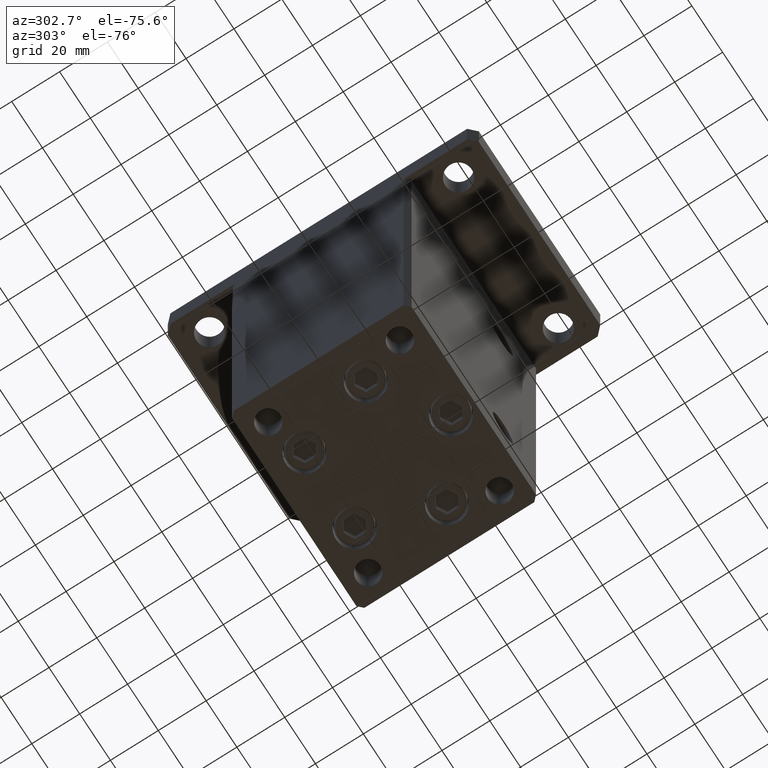
[diagram: clean part render]
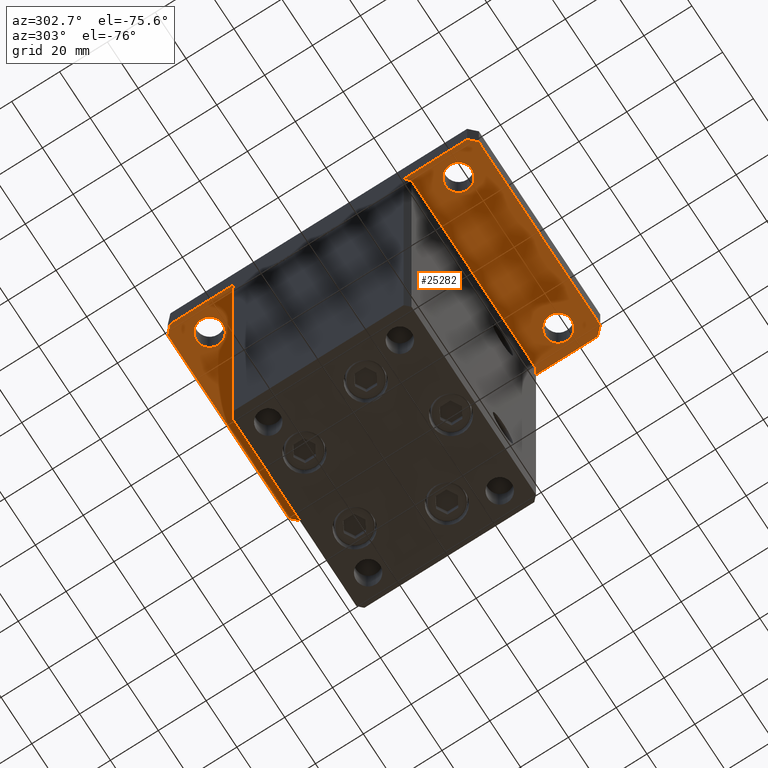
[diagram: same view with one face highlighted and labeled with its STEP entity id]
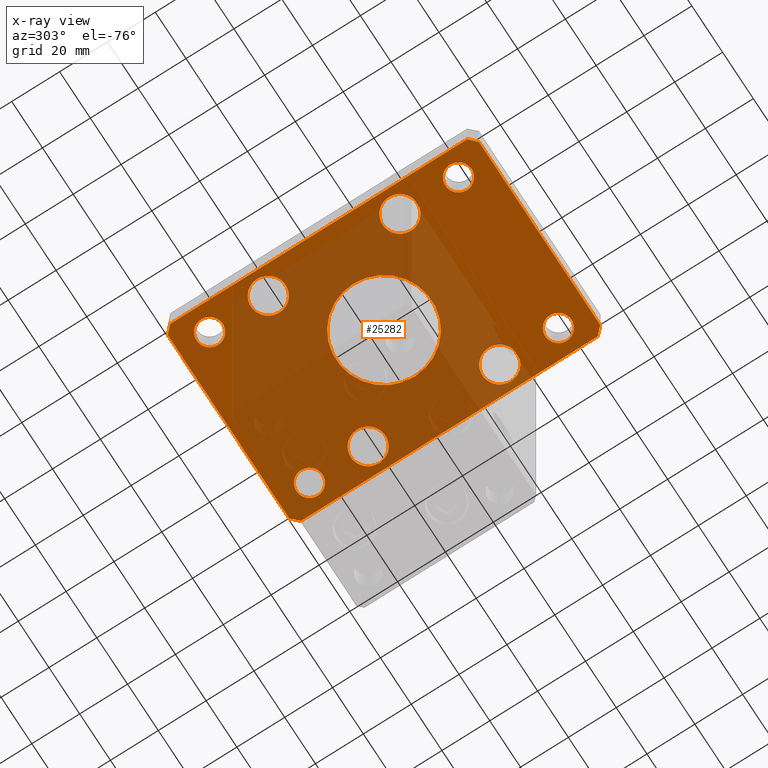
[diagram: x-ray of the same camera — body ghosted, the highlighted face saturated]
A machine part, auxiliary view. The second image highlights one B-rep face of the part: STEP entity #25282.
The next image is the same camera in x-ray: the body ghosted, the highlighted face saturated — about 61% of this face is hidden behind the body in this view.
In plain terms, the highlighted planar face has unit normal (0, 0, 1).
Its self-contained STEP definition (entity closure, byte-faithful):
#389 = VERTEX_POINT ( 'NONE', #41103 ) ;
#785 = CARTESIAN_POINT ( 'NONE',  ( -38.00000000000000000, 52.00000000000000000, 0.000000000000000000 ) ) ;
#1328 = EDGE_CURVE ( 'NONE', #42483, #43522, #40768, .T. ) ;
#2064 = ORIENTED_EDGE ( 'NONE', *, *, #34419, .T. ) ;
#2121 = AXIS2_PLACEMENT_3D ( 'NONE', #2670, #26832, #48259 ) ;
#2592 = AXIS2_PLACEMENT_3D ( 'NONE', #6078, #52208, #39225 ) ;
#2626 = ORIENTED_EDGE ( 'NONE', *, *, #34859, .F. ) ;
#2670 = CARTESIAN_POINT ( 'NONE',  ( 32.50000000000000000, -27.50000000000000000, 0.000000000000000000 ) ) ;
#2945 = DIRECTION ( 'NONE',  ( 0.000000000000000000, 0.000000000000000000, 1.000000000000000000 ) ) ;
#2987 = CIRCLE ( 'NONE', #2121, 7.249999999999999112 ) ;
#3238 = LINE ( 'NONE', #7842, #10444 ) ;
#3539 = VECTOR ( 'NONE', #13712, 1000.000000000000000 ) ;
#3625 = DIRECTION ( 'NONE',  ( -0.7071067811865417996, 0.7071067811865532349, 0.000000000000000000 ) ) ;
#3637 = DIRECTION ( 'NONE',  ( 1.000000000000000000, 0.000000000000000000, -0.000000000000000000 ) ) ;
#3768 = AXIS2_PLACEMENT_3D ( 'NONE', #28439, #32513, #49590 ) ;
#3892 = CARTESIAN_POINT ( 'NONE',  ( 42.50000000000000000, 62.00000000000000711, 0.000000000000000000 ) ) ;
#3900 = CARTESIAN_POINT ( 'NONE',  ( 42.50000000000000000, -61.99999999999988631, 0.000000000000000000 ) ) ;
#3908 = FACE_BOUND ( 'NONE', #28735, .T. ) ;
#4336 = CIRCLE ( 'NONE', #26867, 7.249999999999999112 ) ;
#4415 = VECTOR ( 'NONE', #27086, 1000.000000000000000 ) ;
#4878 = VERTEX_POINT ( 'NONE', #35519 ) ;
#5719 = DIRECTION ( 'NONE',  ( 1.000000000000000000, 0.000000000000000000, 0.000000000000000000 ) ) ;
#5837 = DIRECTION ( 'NONE',  ( 1.000000000000000000, 0.000000000000000000, 0.000000000000000000 ) ) ;
#6078 = CARTESIAN_POINT ( 'NONE',  ( -32.49999999999997868, -52.00000000000000711, 0.000000000000000000 ) ) ;
#6565 = VECTOR ( 'NONE', #3625, 1000.000000000000000 ) ;
#6569 = CARTESIAN_POINT ( 'NONE',  ( 32.49999999999997868, -52.00000000000000711, 0.000000000000000000 ) ) ;
#7260 = ORIENTED_EDGE ( 'NONE', *, *, #40517, .F. ) ;
#7829 = EDGE_CURVE ( 'NONE', #20402, #46473, #45767, .T. ) ;
#7842 = CARTESIAN_POINT ( 'NONE',  ( 39.50000000000002842, 65.00000000000002842, 0.000000000000000000 ) ) ;
#8246 = PLANE ( 'NONE',  #39061 ) ;
#8498 = EDGE_CURVE ( 'NONE', #28743, #28256, #42238, .T. ) ;
#8823 = ORIENTED_EDGE ( 'NONE', *, *, #43229, .T. ) ;
#8977 = DIRECTION ( 'NONE',  ( 0.000000000000000000, 0.000000000000000000, -1.000000000000000000 ) ) ;
#9223 = LINE ( 'NONE', #3892, #6565 ) ;
#9480 = CARTESIAN_POINT ( 'NONE',  ( 39.50000000000001421, -64.99999999999988631, 0.000000000000000000 ) ) ;
#9531 = DIRECTION ( 'NONE',  ( 0.000000000000000000, 0.000000000000000000, 1.000000000000000000 ) ) ;
#9793 = DIRECTION ( 'NONE',  ( 0.000000000000000000, 0.000000000000000000, 1.000000000000000000 ) ) ;
#9914 = ORIENTED_EDGE ( 'NONE', *, *, #51365, .T. ) ;
#10130 = DIRECTION ( 'NONE',  ( 0.000000000000000000, 0.000000000000000000, 1.000000000000000000 ) ) ;
#10444 = VECTOR ( 'NONE', #40454, 1000.000000000000000 ) ;
#10535 = CARTESIAN_POINT ( 'NONE',  ( 37.99999999999997868, -52.00000000000000711, 0.000000000000000000 ) ) ;
#10594 = DIRECTION ( 'NONE',  ( 1.000000000000000000, 0.000000000000000000, 0.000000000000000000 ) ) ;
#10705 = CIRCLE ( 'NONE', #30633, 7.249999999999999112 ) ;
#10722 = CARTESIAN_POINT ( 'NONE',  ( 20.00000000000000000, 2.449293598294706513E-15, 0.000000000000000000 ) ) ;
#10997 = ORIENTED_EDGE ( 'NONE', *, *, #30968, .F. ) ;
#11036 = CARTESIAN_POINT ( 'NONE',  ( -32.50000000000000000, 52.00000000000000000, 0.000000000000000000 ) ) ;
#11590 = VERTEX_POINT ( 'NONE', #50466 ) ;
#11612 = CIRCLE ( 'NONE', #18551, 7.249999999999999112 ) ;
#11655 = VECTOR ( 'NONE', #42162, 1000.000000000000000 ) ;
#11708 = VERTEX_POINT ( 'NONE', #10535 ) ;
#11879 = AXIS2_PLACEMENT_3D ( 'NONE', #51635, #10130, #31028 ) ;
#12356 = CARTESIAN_POINT ( 'NONE',  ( 32.50000000000000000, 27.50000000000000000, 0.000000000000000000 ) ) ;
#12527 = VECTOR ( 'NONE', #26576, 1000.000000000000114 ) ;
#13050 = AXIS2_PLACEMENT_3D ( 'NONE', #30079, #42302, #46619 ) ;
#13712 = DIRECTION ( 'NONE',  ( -0.7071067811865466846, -0.7071067811865483499, 0.000000000000000000 ) ) ;
#13848 = VERTEX_POINT ( 'NONE', #27666 ) ;
#13897 = CIRCLE ( 'NONE', #52899, 5.499999999999998224 ) ;
#14421 = AXIS2_PLACEMENT_3D ( 'NONE', #28221, #24158, #40723 ) ;
#15231 = CARTESIAN_POINT ( 'NONE',  ( 25.25000000000000000, -27.50000000000000000, 0.000000000000000000 ) ) ;
#15506 = VERTEX_POINT ( 'NONE', #785 ) ;
#15572 = VERTEX_POINT ( 'NONE', #51230 ) ;
#15705 = VERTEX_POINT ( 'NONE', #31967 ) ;
#15785 = EDGE_CURVE ( 'NONE', #41076, #4878, #32416, .T. ) ;
#15896 = CARTESIAN_POINT ( 'NONE',  ( -26.99999999999998579, -52.00000000000000711, 0.000000000000000000 ) ) ;
#16133 = FACE_BOUND ( 'NONE', #33907, .T. ) ;
#16190 = AXIS2_PLACEMENT_3D ( 'NONE', #27807, #39502, #28086 ) ;
#16672 = DIRECTION ( 'NONE',  ( 0.000000000000000000, 0.000000000000000000, 1.000000000000000000 ) ) ;
#17164 = LINE ( 'NONE', #25834, #22315 ) ;
#17407 = CIRCLE ( 'NONE', #13050, 20.00000000000000000 ) ;
#17693 = CARTESIAN_POINT ( 'NONE',  ( -39.50000000000003553, 65.00000000000000000, 0.000000000000000000 ) ) ;
#18281 = DIRECTION ( 'NONE',  ( 0.000000000000000000, 0.000000000000000000, 1.000000000000000000 ) ) ;
#18500 = EDGE_CURVE ( 'NONE', #46473, #40501, #25790, .T. ) ;
#18551 = AXIS2_PLACEMENT_3D ( 'NONE', #44462, #2945, #19512 ) ;
#18629 = EDGE_CURVE ( 'NONE', #39249, #15705, #2987, .T. ) ;
#18737 = DIRECTION ( 'NONE',  ( 0.000000000000000000, 0.000000000000000000, 1.000000000000000000 ) ) ;
#18956 = EDGE_CURVE ( 'NONE', #15572, #11708, #53275, .T. ) ;
#18998 = DIRECTION ( 'NONE',  ( 1.000000000000000000, 0.000000000000000000, 0.000000000000000000 ) ) ;
#19096 = CARTESIAN_POINT ( 'NONE',  ( -25.25000000000000711, 27.50000000000000000, 0.000000000000000000 ) ) ;
#19512 = DIRECTION ( 'NONE',  ( 1.000000000000000000, 0.000000000000000000, 0.000000000000000000 ) ) ;
#20402 = VERTEX_POINT ( 'NONE', #42332 ) ;
#20480 = ORIENTED_EDGE ( 'NONE', *, *, #18629, .T. ) ;
#20484 = FACE_BOUND ( 'NONE', #46186, .T. ) ;
#20492 = DIRECTION ( 'NONE',  ( 1.000000000000000000, 0.000000000000000000, 0.000000000000000000 ) ) ;
#20569 = ORIENTED_EDGE ( 'NONE', *, *, #7829, .F. ) ;
#20681 = ORIENTED_EDGE ( 'NONE', *, *, #18500, .F. ) ;
#20758 = FACE_BOUND ( 'NONE', #36161, .T. ) ;
#21025 = AXIS2_PLACEMENT_3D ( 'NONE', #47671, #8977, #41850 ) ;
#21032 = CARTESIAN_POINT ( 'NONE',  ( 32.50000000000000000, 27.50000000000000000, 0.000000000000000000 ) ) ;
#21287 = FACE_BOUND ( 'NONE', #34823, .T. ) ;
#21507 = DIRECTION ( 'NONE',  ( 0.000000000000000000, 1.000000000000000000, 0.000000000000000000 ) ) ;
#21839 = VERTEX_POINT ( 'NONE', #24597 ) ;
#21925 = ORIENTED_EDGE ( 'NONE', *, *, #29766, .T. ) ;
#22047 = EDGE_CURVE ( 'NONE', #29877, #389, #9223, .T. ) ;
#22315 = VECTOR ( 'NONE', #21507, 1000.000000000000000 ) ;
#23228 = CARTESIAN_POINT ( 'NONE',  ( -42.49999999999999289, -62.00000000000001421, 0.000000000000000000 ) ) ;
#23348 = CARTESIAN_POINT ( 'NONE',  ( 27.00000000000001421, 51.99999999999999289, 0.000000000000000000 ) ) ;
#23600 = AXIS2_PLACEMENT_3D ( 'NONE', #21032, #16672, #20492 ) ;
#23905 = CARTESIAN_POINT ( 'NONE',  ( 42.50000000000000000, 62.00000000000000711, 0.000000000000000000 ) ) ;
#24158 = DIRECTION ( 'NONE',  ( 0.000000000000000000, 0.000000000000000000, 1.000000000000000000 ) ) ;
#24597 = CARTESIAN_POINT ( 'NONE',  ( -20.00000000000000000, 0.000000000000000000, 0.000000000000000000 ) ) ;
#24619 = ORIENTED_EDGE ( 'NONE', *, *, #25908, .F. ) ;
#25240 = ORIENTED_EDGE ( 'NONE', *, *, #15785, .T. ) ;
#25282 = ADVANCED_FACE ( 'NONE', ( #45154, #28890, #20758, #21287, #45428, #33231, #16133, #3908, #20484, #41386 ), #8246, .F. ) ;
#25321 = VERTEX_POINT ( 'NONE', #38637 ) ;
#25790 = LINE ( 'NONE', #9480, #12527 ) ;
#25834 = CARTESIAN_POINT ( 'NONE',  ( 42.50000000000000000, -61.99999999999988631, 0.000000000000000000 ) ) ;
#25845 = EDGE_CURVE ( 'NONE', #389, #28743, #3238, .T. ) ;
#25908 = EDGE_CURVE ( 'NONE', #21839, #44751, #17407, .T. ) ;
#26576 = DIRECTION ( 'NONE',  ( 0.7071067811865459074, 0.7071067811865491270, 0.000000000000000000 ) ) ;
#26675 = DIRECTION ( 'NONE',  ( 1.000000000000000000, 0.000000000000000000, 0.000000000000000000 ) ) ;
#26676 = EDGE_CURVE ( 'NONE', #43522, #42483, #38146, .T. ) ;
#26832 = DIRECTION ( 'NONE',  ( 0.000000000000000000, 0.000000000000000000, 1.000000000000000000 ) ) ;
#26867 = AXIS2_PLACEMENT_3D ( 'NONE', #38855, #47234, #10594 ) ;
#26950 = CIRCLE ( 'NONE', #45170, 5.499999999999991118 ) ;
#27086 = DIRECTION ( 'NONE',  ( 0.7071067811865483499, -0.7071067811865466846, 0.000000000000000000 ) ) ;
#27385 = ORIENTED_EDGE ( 'NONE', *, *, #1328, .T. ) ;
#27666 = CARTESIAN_POINT ( 'NONE',  ( -25.25000000000000000, -27.50000000000000000, 0.000000000000000000 ) ) ;
#27807 = CARTESIAN_POINT ( 'NONE',  ( -32.50000000000000000, 52.00000000000000000, 0.000000000000000000 ) ) ;
#27849 = ORIENTED_EDGE ( 'NONE', *, *, #28804, .T. ) ;
#27973 = VERTEX_POINT ( 'NONE', #23348 ) ;
#28063 = EDGE_LOOP ( 'NONE', ( #29491, #50615 ) ) ;
#28086 = DIRECTION ( 'NONE',  ( 1.000000000000000000, 0.000000000000000000, 0.000000000000000000 ) ) ;
#28221 = CARTESIAN_POINT ( 'NONE',  ( 32.50000000000000000, 51.99999999999999289, 0.000000000000000000 ) ) ;
#28256 = VERTEX_POINT ( 'NONE', #40066 ) ;
#28364 = CARTESIAN_POINT ( 'NONE',  ( 39.50000000000001421, -64.99999999999988631, 0.000000000000000000 ) ) ;
#28439 = CARTESIAN_POINT ( 'NONE',  ( -32.50000000000000711, 27.50000000000000000, 0.000000000000000000 ) ) ;
#28613 = DIRECTION ( 'NONE',  ( 0.000000000000000000, 0.000000000000000000, 1.000000000000000000 ) ) ;
#28735 = EDGE_LOOP ( 'NONE', ( #34535, #2064 ) ) ;
#28743 = VERTEX_POINT ( 'NONE', #17693 ) ;
#28804 = EDGE_CURVE ( 'NONE', #13848, #39817, #4336, .T. ) ;
#28890 = FACE_OUTER_BOUND ( 'NONE', #29930, .T. ) ;
#29039 = ORIENTED_EDGE ( 'NONE', *, *, #30598, .T. ) ;
#29252 = CIRCLE ( 'NONE', #11879, 7.249999999999999112 ) ;
#29491 = ORIENTED_EDGE ( 'NONE', *, *, #51130, .T. ) ;
#29766 = EDGE_CURVE ( 'NONE', #11708, #15572, #13897, .T. ) ;
#29854 = ORIENTED_EDGE ( 'NONE', *, *, #8498, .F. ) ;
#29877 = VERTEX_POINT ( 'NONE', #23905 ) ;
#29930 = EDGE_LOOP ( 'NONE', ( #20569, #10997, #7260, #29854, #33153, #43296, #47420, #20681 ) ) ;
#30079 = CARTESIAN_POINT ( 'NONE',  ( 0.000000000000000000, 0.000000000000000000, 0.000000000000000000 ) ) ;
#30598 = EDGE_CURVE ( 'NONE', #11590, #27973, #26950, .T. ) ;
#30633 = AXIS2_PLACEMENT_3D ( 'NONE', #12356, #36280, #45192 ) ;
#30853 = EDGE_LOOP ( 'NONE', ( #37216, #21925 ) ) ;
#30968 = EDGE_CURVE ( 'NONE', #42370, #20402, #49056, .T. ) ;
#31028 = DIRECTION ( 'NONE',  ( 1.000000000000000000, 0.000000000000000000, 0.000000000000000000 ) ) ;
#31967 = CARTESIAN_POINT ( 'NONE',  ( 39.75000000000000000, -27.50000000000000000, 0.000000000000000000 ) ) ;
#32280 = CIRCLE ( 'NONE', #47860, 7.249999999999999112 ) ;
#32416 = CIRCLE ( 'NONE', #3768, 7.249999999999999112 ) ;
#32513 = DIRECTION ( 'NONE',  ( 0.000000000000000000, 0.000000000000000000, 1.000000000000000000 ) ) ;
#32943 = LINE ( 'NONE', #49486, #11655 ) ;
#33145 = CIRCLE ( 'NONE', #33180, 5.499999999999994671 ) ;
#33153 = ORIENTED_EDGE ( 'NONE', *, *, #25845, .F. ) ;
#33180 = AXIS2_PLACEMENT_3D ( 'NONE', #11036, #35483, #44140 ) ;
#33231 = FACE_BOUND ( 'NONE', #42313, .T. ) ;
#33907 = EDGE_LOOP ( 'NONE', ( #20480, #8823 ) ) ;
#34116 = EDGE_CURVE ( 'NONE', #34343, #15506, #33145, .T. ) ;
#34343 = VERTEX_POINT ( 'NONE', #47878 ) ;
#34419 = EDGE_CURVE ( 'NONE', #53673, #25321, #41822, .T. ) ;
#34519 = DIRECTION ( 'NONE',  ( 1.000000000000000000, 0.000000000000000000, 0.000000000000000000 ) ) ;
#34535 = ORIENTED_EDGE ( 'NONE', *, *, #42452, .T. ) ;
#34784 = CARTESIAN_POINT ( 'NONE',  ( 32.50000000000000000, 51.99999999999999289, 0.000000000000000000 ) ) ;
#34823 = EDGE_LOOP ( 'NONE', ( #9914, #29039 ) ) ;
#34859 = EDGE_CURVE ( 'NONE', #44751, #21839, #43530, .T. ) ;
#35086 = EDGE_CURVE ( 'NONE', #4878, #41076, #32280, .T. ) ;
#35483 = DIRECTION ( 'NONE',  ( 0.000000000000000000, 0.000000000000000000, 1.000000000000000000 ) ) ;
#35519 = CARTESIAN_POINT ( 'NONE',  ( -39.75000000000000711, 27.50000000000000000, 0.000000000000000000 ) ) ;
#36013 = ORIENTED_EDGE ( 'NONE', *, *, #26676, .T. ) ;
#36161 = EDGE_LOOP ( 'NONE', ( #36013, #27385 ) ) ;
#36280 = DIRECTION ( 'NONE',  ( 0.000000000000000000, 0.000000000000000000, 1.000000000000000000 ) ) ;
#37216 = ORIENTED_EDGE ( 'NONE', *, *, #18956, .T. ) ;
#37590 = CARTESIAN_POINT ( 'NONE',  ( 0.000000000000000000, 0.000000000000000000, 0.000000000000000000 ) ) ;
#38015 = ORIENTED_EDGE ( 'NONE', *, *, #35086, .T. ) ;
#38146 = CIRCLE ( 'NONE', #38984, 5.499999999999994671 ) ;
#38452 = DIRECTION ( 'NONE',  ( 1.000000000000000000, 1.405345600791337191E-15, 0.000000000000000000 ) ) ;
#38458 = CARTESIAN_POINT ( 'NONE',  ( -32.50000000000000711, 27.50000000000000000, 0.000000000000000000 ) ) ;
#38596 = CARTESIAN_POINT ( 'NONE',  ( 32.49999999999997868, -52.00000000000000711, 0.000000000000000000 ) ) ;
#38637 = CARTESIAN_POINT ( 'NONE',  ( 25.25000000000000000, 27.50000000000000000, 0.000000000000000000 ) ) ;
#38855 = CARTESIAN_POINT ( 'NONE',  ( -32.50000000000000000, -27.50000000000000000, 0.000000000000000000 ) ) ;
#38984 = AXIS2_PLACEMENT_3D ( 'NONE', #39372, #18737, #18998 ) ;
#39061 = AXIS2_PLACEMENT_3D ( 'NONE', #37590, #28613, #3637 ) ;
#39225 = DIRECTION ( 'NONE',  ( 1.000000000000000000, 0.000000000000000000, 0.000000000000000000 ) ) ;
#39249 = VERTEX_POINT ( 'NONE', #15231 ) ;
#39372 = CARTESIAN_POINT ( 'NONE',  ( -32.49999999999997868, -52.00000000000000711, 0.000000000000000000 ) ) ;
#39502 = DIRECTION ( 'NONE',  ( 0.000000000000000000, 0.000000000000000000, 1.000000000000000000 ) ) ;
#39817 = VERTEX_POINT ( 'NONE', #43071 ) ;
#40066 = CARTESIAN_POINT ( 'NONE',  ( -42.50000000000002132, 62.00000000000000711, 0.000000000000000000 ) ) ;
#40454 = DIRECTION ( 'NONE',  ( -1.000000000000000000, -3.513364001978340512E-16, 0.000000000000000000 ) ) ;
#40501 = VERTEX_POINT ( 'NONE', #3900 ) ;
#40517 = EDGE_CURVE ( 'NONE', #28256, #42370, #32943, .T. ) ;
#40723 = DIRECTION ( 'NONE',  ( 1.000000000000000000, 0.000000000000000000, 0.000000000000000000 ) ) ;
#40768 = CIRCLE ( 'NONE', #2592, 5.499999999999994671 ) ;
#41076 = VERTEX_POINT ( 'NONE', #19096 ) ;
#41103 = CARTESIAN_POINT ( 'NONE',  ( 39.50000000000002842, 65.00000000000002842, 0.000000000000000000 ) ) ;
#41360 = CIRCLE ( 'NONE', #16190, 5.499999999999994671 ) ;
#41386 = FACE_BOUND ( 'NONE', #30853, .T. ) ;
#41687 = VECTOR ( 'NONE', #38452, 1000.000000000000000 ) ;
#41822 = CIRCLE ( 'NONE', #23600, 7.249999999999999112 ) ;
#41850 = DIRECTION ( 'NONE',  ( -1.000000000000000000, 0.000000000000000000, 0.000000000000000000 ) ) ;
#42162 = DIRECTION ( 'NONE',  ( 2.238352872228137677E-16, -1.000000000000000000, 0.000000000000000000 ) ) ;
#42238 = LINE ( 'NONE', #50888, #3539 ) ;
#42302 = DIRECTION ( 'NONE',  ( 0.000000000000000000, 0.000000000000000000, -1.000000000000000000 ) ) ;
#42313 = EDGE_LOOP ( 'NONE', ( #52400, #27849 ) ) ;
#42332 = CARTESIAN_POINT ( 'NONE',  ( -39.50000000000000000, -65.00000000000000000, 0.000000000000000000 ) ) ;
#42370 = VERTEX_POINT ( 'NONE', #23228 ) ;
#42452 = EDGE_CURVE ( 'NONE', #25321, #53673, #10705, .T. ) ;
#42483 = VERTEX_POINT ( 'NONE', #15896 ) ;
#43001 = CARTESIAN_POINT ( 'NONE',  ( -37.99999999999997868, -52.00000000000000711, 0.000000000000000000 ) ) ;
#43071 = CARTESIAN_POINT ( 'NONE',  ( -39.75000000000000000, -27.50000000000000000, 0.000000000000000000 ) ) ;
#43229 = EDGE_CURVE ( 'NONE', #15705, #39249, #11612, .T. ) ;
#43296 = ORIENTED_EDGE ( 'NONE', *, *, #22047, .F. ) ;
#43522 = VERTEX_POINT ( 'NONE', #43001 ) ;
#43530 = CIRCLE ( 'NONE', #21025, 20.00000000000000000 ) ;
#43644 = CARTESIAN_POINT ( 'NONE',  ( -42.49999999999999289, -62.00000000000001421, 0.000000000000000000 ) ) ;
#44140 = DIRECTION ( 'NONE',  ( 1.000000000000000000, 0.000000000000000000, 0.000000000000000000 ) ) ;
#44462 = CARTESIAN_POINT ( 'NONE',  ( 32.50000000000000000, -27.50000000000000000, 0.000000000000000000 ) ) ;
#44751 = VERTEX_POINT ( 'NONE', #10722 ) ;
#45154 = FACE_BOUND ( 'NONE', #46265, .T. ) ;
#45170 = AXIS2_PLACEMENT_3D ( 'NONE', #34784, #9531, #34519 ) ;
#45192 = DIRECTION ( 'NONE',  ( 1.000000000000000000, 0.000000000000000000, 0.000000000000000000 ) ) ;
#45428 = FACE_BOUND ( 'NONE', #28063, .T. ) ;
#45767 = LINE ( 'NONE', #47085, #41687 ) ;
#46186 = EDGE_LOOP ( 'NONE', ( #38015, #25240 ) ) ;
#46265 = EDGE_LOOP ( 'NONE', ( #24619, #2626 ) ) ;
#46473 = VERTEX_POINT ( 'NONE', #28364 ) ;
#46619 = DIRECTION ( 'NONE',  ( -1.000000000000000000, 0.000000000000000000, 0.000000000000000000 ) ) ;
#47085 = CARTESIAN_POINT ( 'NONE',  ( -39.50000000000000000, -65.00000000000000000, 0.000000000000000000 ) ) ;
#47234 = DIRECTION ( 'NONE',  ( 0.000000000000000000, 0.000000000000000000, 1.000000000000000000 ) ) ;
#47420 = ORIENTED_EDGE ( 'NONE', *, *, #52342, .F. ) ;
#47671 = CARTESIAN_POINT ( 'NONE',  ( 0.000000000000000000, 0.000000000000000000, 0.000000000000000000 ) ) ;
#47860 = AXIS2_PLACEMENT_3D ( 'NONE', #38458, #51420, #5837 ) ;
#47878 = CARTESIAN_POINT ( 'NONE',  ( -27.00000000000000711, 52.00000000000000000, 0.000000000000000000 ) ) ;
#48259 = DIRECTION ( 'NONE',  ( 1.000000000000000000, 0.000000000000000000, 0.000000000000000000 ) ) ;
#49056 = LINE ( 'NONE', #43644, #4415 ) ;
#49333 = CARTESIAN_POINT ( 'NONE',  ( 39.75000000000000000, 27.50000000000000000, 0.000000000000000000 ) ) ;
#49486 = CARTESIAN_POINT ( 'NONE',  ( -42.50000000000002132, 62.00000000000000711, 0.000000000000000000 ) ) ;
#49590 = DIRECTION ( 'NONE',  ( 1.000000000000000000, 0.000000000000000000, 0.000000000000000000 ) ) ;
#50010 = CIRCLE ( 'NONE', #14421, 5.499999999999991118 ) ;
#50466 = CARTESIAN_POINT ( 'NONE',  ( 37.99999999999999289, 51.99999999999999289, 0.000000000000000000 ) ) ;
#50615 = ORIENTED_EDGE ( 'NONE', *, *, #34116, .T. ) ;
#50640 = AXIS2_PLACEMENT_3D ( 'NONE', #6569, #18281, #26675 ) ;
#50888 = CARTESIAN_POINT ( 'NONE',  ( -39.50000000000003553, 65.00000000000000000, 0.000000000000000000 ) ) ;
#51130 = EDGE_CURVE ( 'NONE', #15506, #34343, #41360, .T. ) ;
#51230 = CARTESIAN_POINT ( 'NONE',  ( 26.99999999999998579, -52.00000000000000711, 0.000000000000000000 ) ) ;
#51365 = EDGE_CURVE ( 'NONE', #27973, #11590, #50010, .T. ) ;
#51420 = DIRECTION ( 'NONE',  ( 0.000000000000000000, 0.000000000000000000, 1.000000000000000000 ) ) ;
#51635 = CARTESIAN_POINT ( 'NONE',  ( -32.50000000000000000, -27.50000000000000000, 0.000000000000000000 ) ) ;
#52111 = EDGE_CURVE ( 'NONE', #39817, #13848, #29252, .T. ) ;
#52208 = DIRECTION ( 'NONE',  ( 0.000000000000000000, 0.000000000000000000, 1.000000000000000000 ) ) ;
#52342 = EDGE_CURVE ( 'NONE', #40501, #29877, #17164, .T. ) ;
#52400 = ORIENTED_EDGE ( 'NONE', *, *, #52111, .T. ) ;
#52899 = AXIS2_PLACEMENT_3D ( 'NONE', #38596, #9793, #5719 ) ;
#53275 = CIRCLE ( 'NONE', #50640, 5.499999999999998224 ) ;
#53673 = VERTEX_POINT ( 'NONE', #49333 ) ;